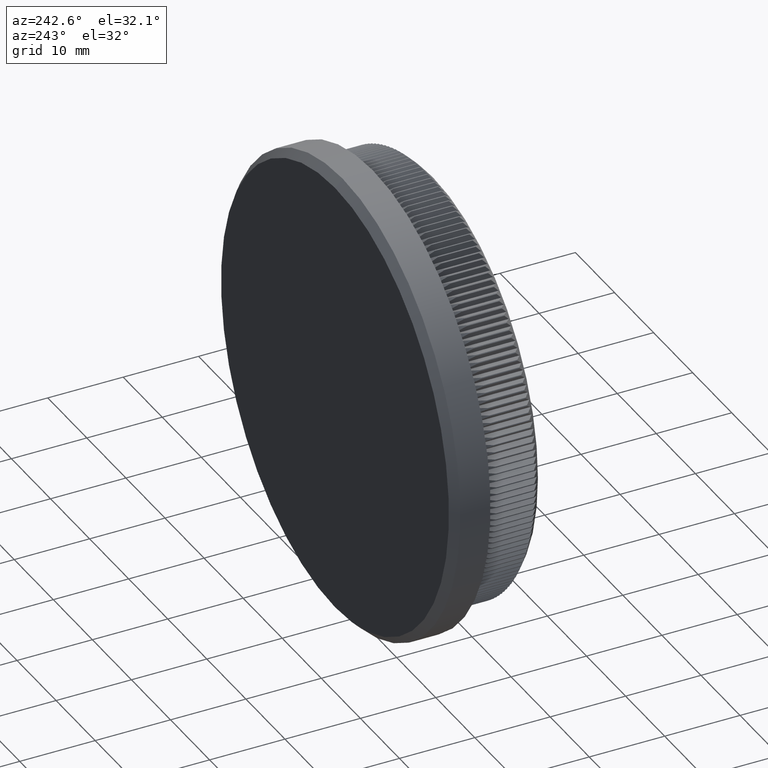
[diagram: clean part render]
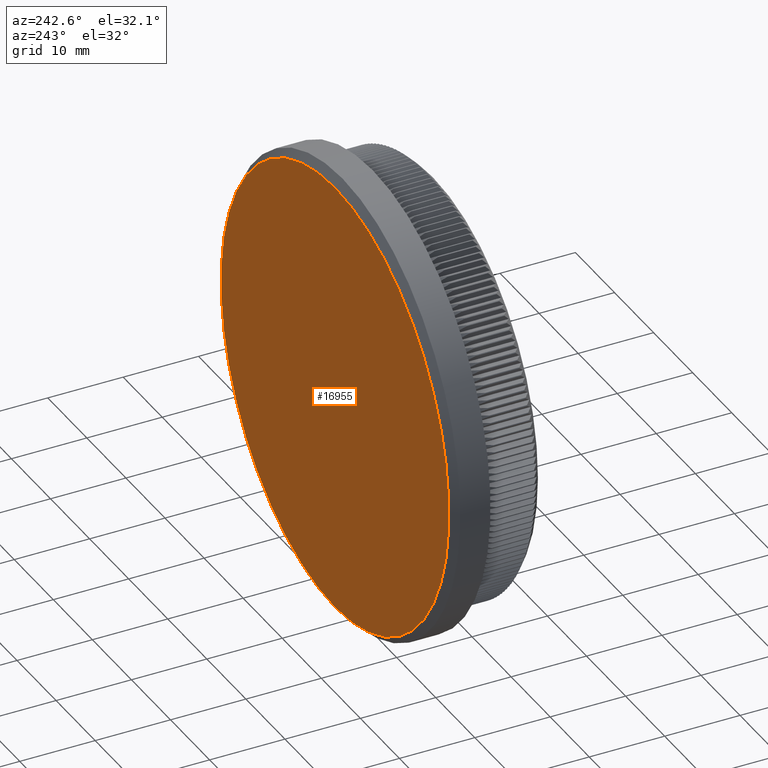
[diagram: same view with one face highlighted and labeled with its STEP entity id]
A machine part, auxiliary view. The second image highlights one B-rep face of the part: STEP entity #16955.
In plain terms, the highlighted planar face has unit normal (0, 1, 0).
Its self-contained STEP definition (entity closure, byte-faithful):
#940 = CARTESIAN_POINT ( 'NONE',  ( 3.631077759471901200E-015, 13.00000000000000000, 29.14999999999998400 ) ) ;
#3346 = CARTESIAN_POINT ( 'NONE',  ( 0.0000000000000000000, 13.00000000000000000, 0.0000000000000000000 ) ) ;
#9341 = DIRECTION ( 'NONE',  ( 0.0000000000000000000, 0.0000000000000000000, 1.000000000000000000 ) ) ;
#9465 = CARTESIAN_POINT ( 'NONE',  ( 0.0000000000000000000, 13.00000000000000000, 0.0000000000000000000 ) ) ;
#12106 = DIRECTION ( 'NONE',  ( 0.0000000000000000000, 1.000000000000000000, 0.0000000000000000000 ) ) ;
#15385 = DIRECTION ( 'NONE',  ( 0.0000000000000000000, -0.0000000000000000000, 1.000000000000000000 ) ) ;
#15785 = DIRECTION ( 'NONE',  ( 0.0000000000000000000, 0.0000000000000000000, 1.000000000000000000 ) ) ;
#16643 = CARTESIAN_POINT ( 'NONE',  ( 0.0000000000000000000, 13.00000000000000000, -29.14999999999998400 ) ) ;
#16955 = ADVANCED_FACE ( 'NONE', ( #20342 ), #32944, .T. ) ;
#17043 = EDGE_CURVE ( 'NONE', #26535, #32717, #25404, .T. ) ;
#18909 = DIRECTION ( 'NONE',  ( 0.0000000000000000000, 1.000000000000000000, 0.0000000000000000000 ) ) ;
#20342 = FACE_OUTER_BOUND ( 'NONE', #20750, .T. ) ;
#20750 = EDGE_LOOP ( 'NONE', ( #36304, #31528 ) ) ;
#24366 = DIRECTION ( 'NONE',  ( 0.0000000000000000000, 1.000000000000000000, 0.0000000000000000000 ) ) ;
#25404 = CIRCLE ( 'NONE', #37267, 29.14999999999998400 ) ;
#26535 = VERTEX_POINT ( 'NONE', #940 ) ;
#28311 = AXIS2_PLACEMENT_3D ( 'NONE', #9465, #12106, #9341 ) ;
#30432 = CARTESIAN_POINT ( 'NONE',  ( 0.0000000000000000000, 13.00000000000000000, 0.0000000000000000000 ) ) ;
#30520 = EDGE_CURVE ( 'NONE', #32717, #26535, #31530, .T. ) ;
#31528 = ORIENTED_EDGE ( 'NONE', *, *, #17043, .T. ) ;
#31530 = CIRCLE ( 'NONE', #28311, 29.14999999999998400 ) ;
#32521 = AXIS2_PLACEMENT_3D ( 'NONE', #3346, #24366, #15385 ) ;
#32717 = VERTEX_POINT ( 'NONE', #16643 ) ;
#32944 = PLANE ( 'NONE',  #32521 ) ;
#36304 = ORIENTED_EDGE ( 'NONE', *, *, #30520, .T. ) ;
#37267 = AXIS2_PLACEMENT_3D ( 'NONE', #30432, #18909, #15785 ) ;